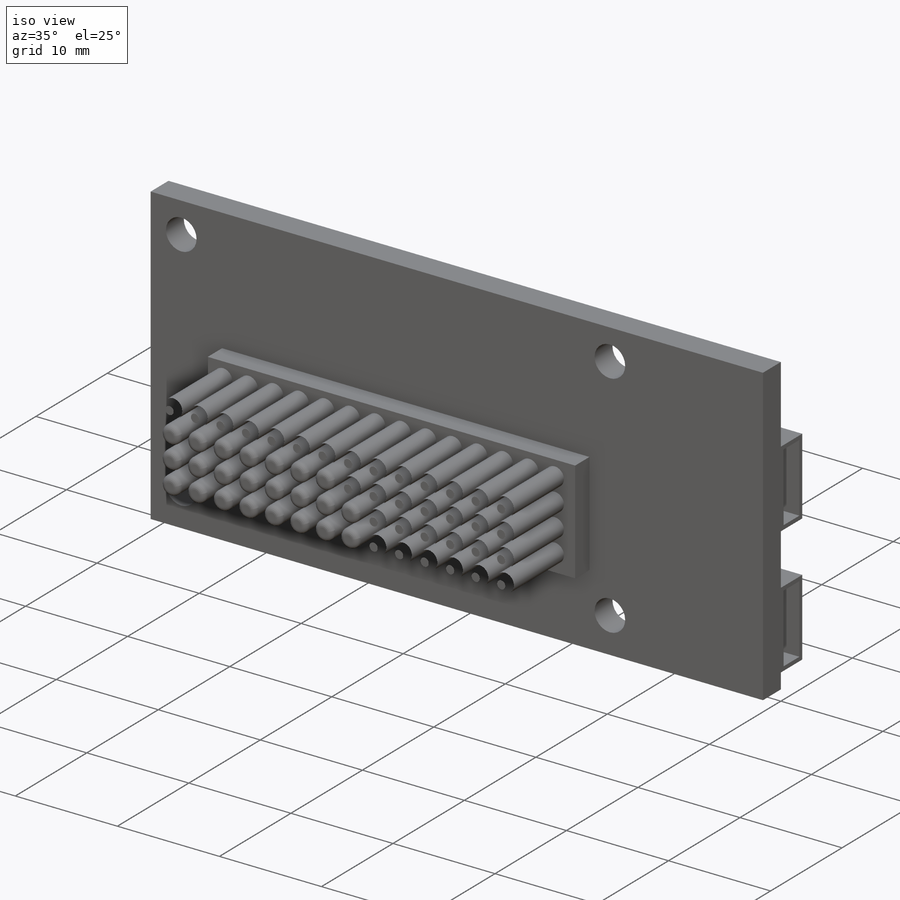
[diagram: iso view]
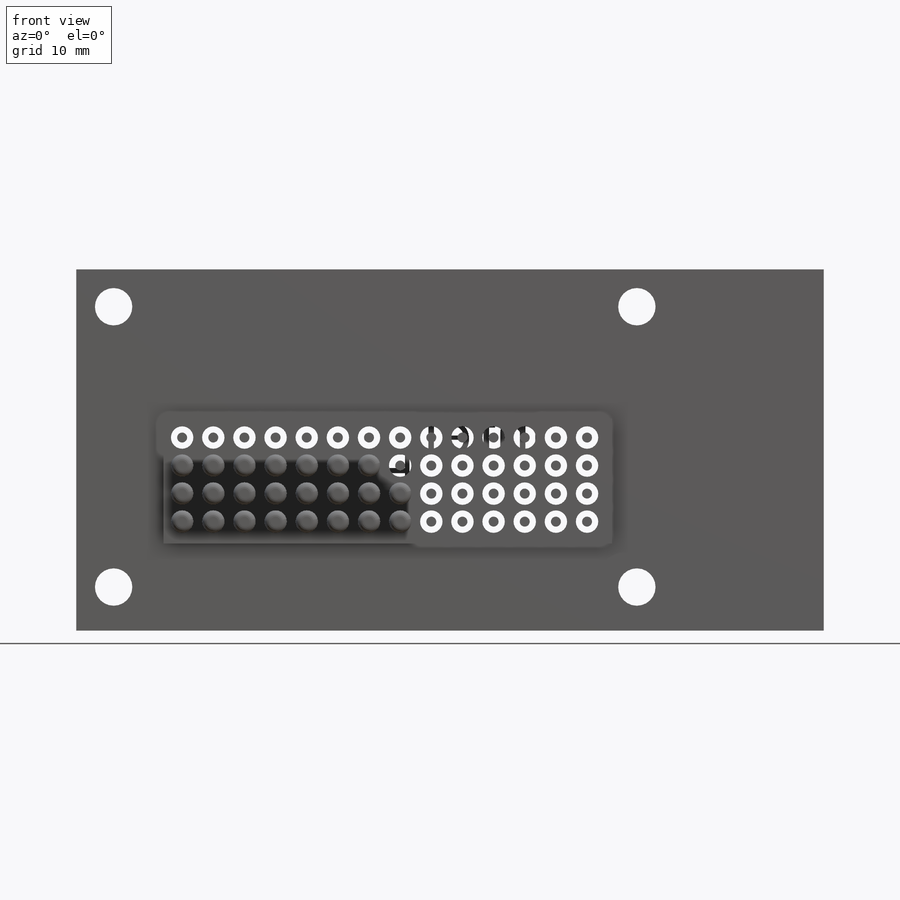
[diagram: front view]
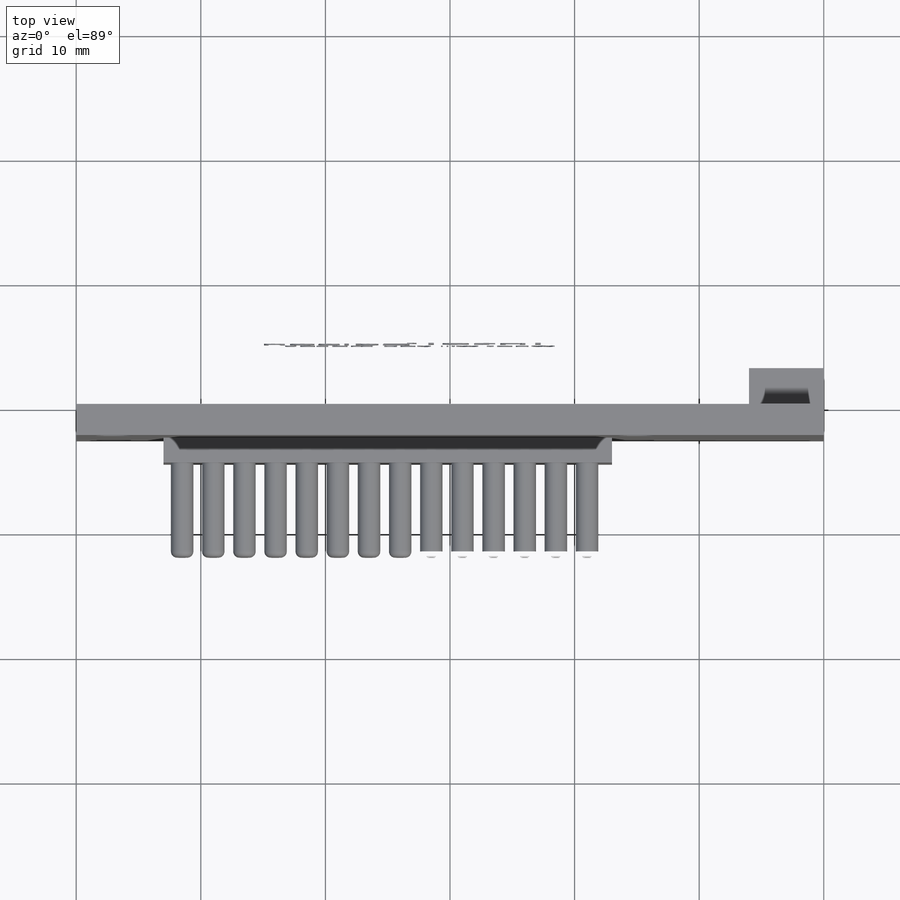
[diagram: top view]
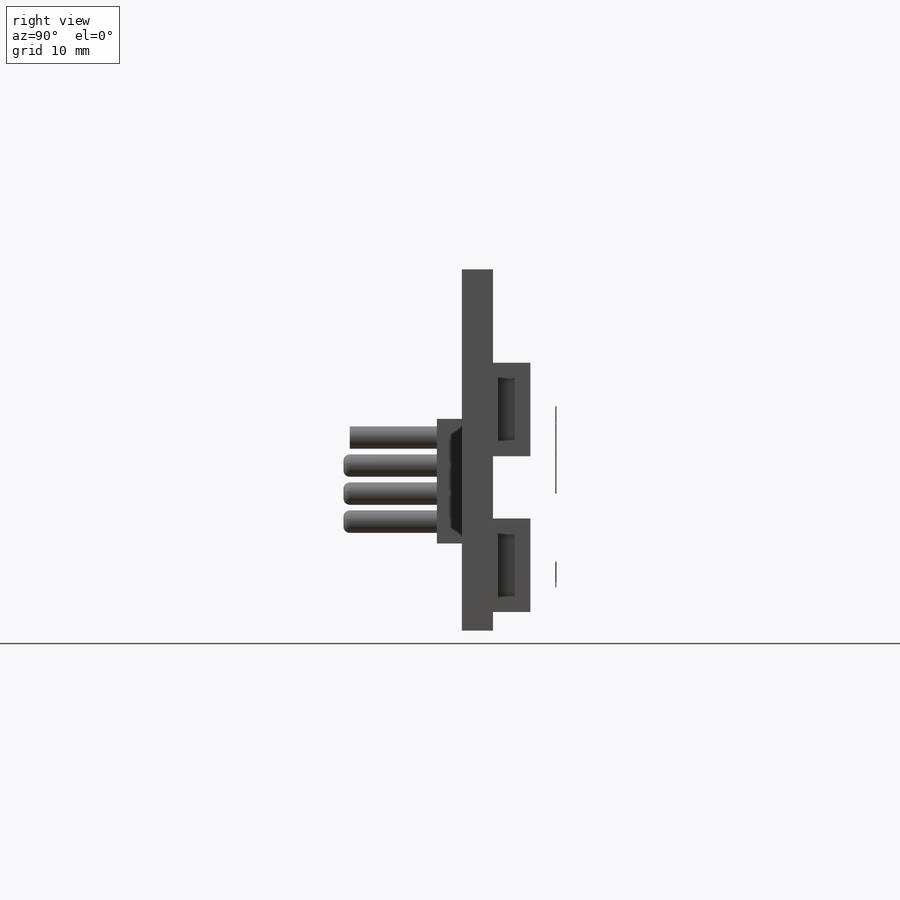
[diagram: right view]
SOLIDWORKS PART (.sldprt)
format: sldprt  version: not decoded by parser v0  size: 1,250,304 bytes
history: native  units: mm
features: sketch x11, extrude x9, plane x3, cut_extrude x2, pattern_linear x2, shell x2, material x1, fillet x1 (+10 scaffold rows collapsed)
feature tree (41):
  scaffold x10  (default folders/planes/origin — collapsed)
  material  "Material <nicht angegeben>"
  plane  "Ebene vorne"
  plane  "Ebene oben"
  plane  "Ebene rechts"
  sketch  "Skizze1"  dims[D1=60.0mm D2=29.0mm]
  extrude  "Aufsatz-Linear austragen1"  Depth=2.5mm
  sketch  "Skizze2"  dims[c1.D1=3.0mm c1.D4=3.0mm c1.D2=3.0mm c1.D3=3.0mm c1.D6=42.0mm c2.D4=2.0 c2.D5=2.0]
  cut_extrude  "Schnitt-Linear austragen1"  [1 undecoded]
  sketch  "Skizze3"  dims[D1=36.0mm D2=10.0mm D3=7.0mm D4=7.0mm]
  extrude  "Aufsatz-Linear austragen2"  Depth=2mm
  sketch  "Skizze4"  dims[D1=1.8mm D2=1.5mm D3=1.5mm D4=14.0 D5=4.0]
  extrude  "Aufsatz-Linear austragen3"  Depth=7.5mm
  fillet  "Verrundung1"  Radius=0.5mm
  sketch  "Skizze5"  dims[D1=35.0mm D2=25.0mm D3=2.0mm D4=6.0mm]
  extrude  "Aufsatz-Linear austragen4"  Depth=3mm
  sketch  "Skizze6"  dims[D1=6.0mm D2=8.0mm]
  extrude  "Aufsatz-Linear austragen5"  Depth=2mm
  sketch  "Skizze8"  dims[D1=8.0mm D2=2.5mm]
  extrude  "Aufsatz-Linear austragen6"  Depth=0.1mm
  sketch  "Skizze9"  dims[D1=0.2mm D2=0.2mm]
  cut_extrude  "Schnitt-Linear austragen3"  Depth=0.1mm
  sketch  "Skizze10"  dims[D1=7.5mm D2=6.0mm D3=1.5mm]
  extrude  "Aufsatz-Linear austragen8"  Depth=3mm
  pattern_linear  "Lineares Muster1"  Count1=2 Count2=1 Spacing1=12.5mm Spacing2=50mm
  shell  "Wandung1"  Thickness=0.4mm
  shell  "Wandung2"  Thickness=0.4mm
  sketch  "Skizze11"  dims[D1=5.0mm D2=3.0mm D3=1.5mm D4=1.5mm]
  extrude  "Aufsatz-Linear austragen9"  Depth=2.5mm
  sketch  "Skizze12"  dims[D1=1.5mm D5=1.5mm D2=1.5mm D4=1.5mm D6=1.5mm D3=0.0mm]
  extrude  "Aufsatz-Linear austragen11"  Depth=7mm
  pattern_linear  "Verrundung3"  Spacing1=0.5mm  [1 undecoded]
decode coverage: 26 of 27 modeling features carry decoded parameters
note: 2 parameter values undecoded
note: suppression state not decoded; provenance and decode notes live in map.json
